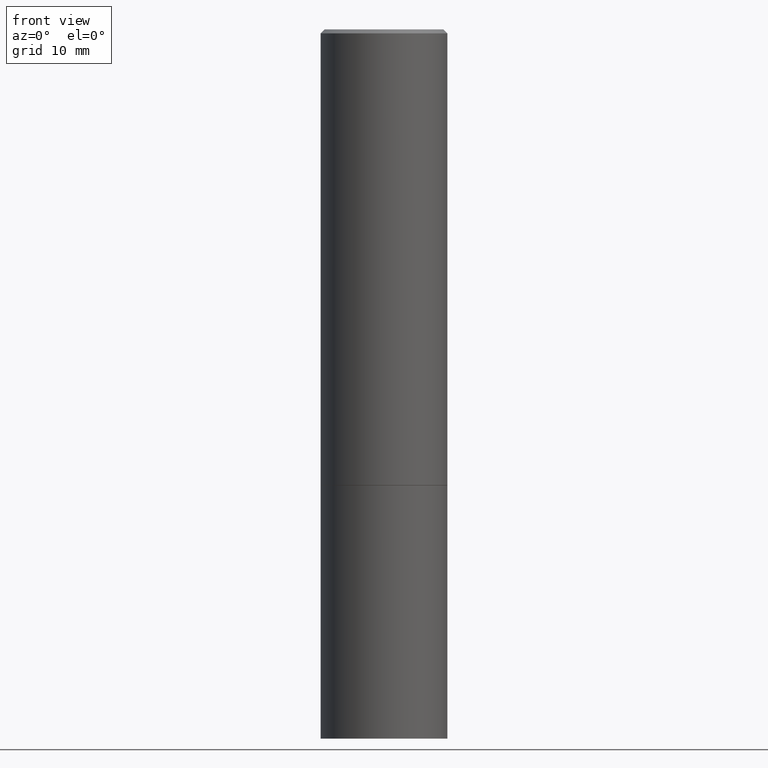
[diagram: clean part render]
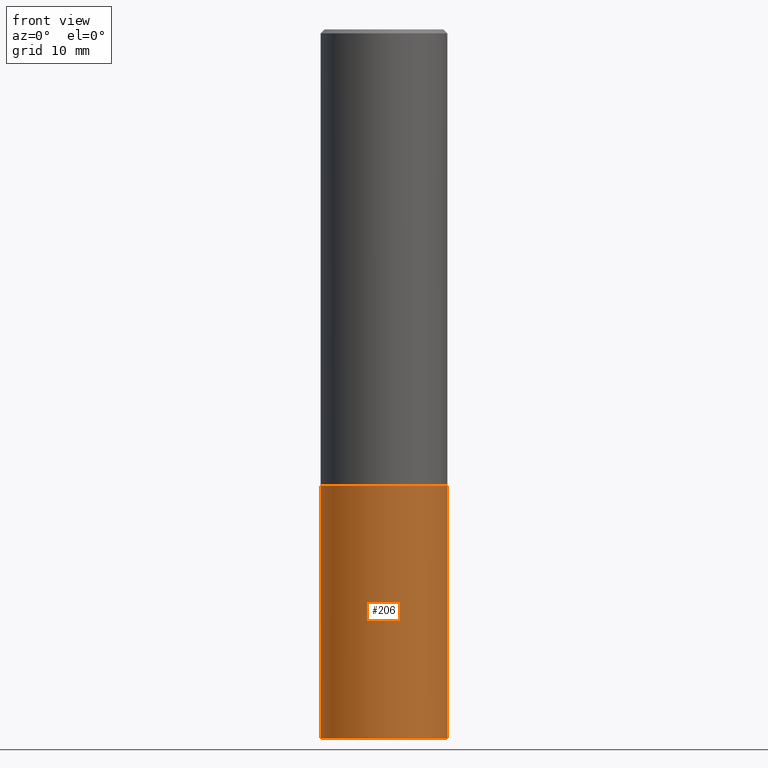
[diagram: same view with one face highlighted and labeled with its STEP entity id]
A machine part, front view. The second image highlights one B-rep face of the part: STEP entity #206.
In plain terms, the highlighted cylindrical surface (partial cylindrical patch) has radius 7.9375 mm, axis along (-0, 0, 1).
Its self-contained STEP definition (entity closure, byte-faithful):
#19 = VERTEX_POINT ( 'NONE', #365 ) ;
#22 = ORIENTED_EDGE ( 'NONE', *, *, #226, .F. ) ;
#26 = AXIS2_PLACEMENT_3D ( 'NONE', #296, #313, #108 ) ;
#50 = VECTOR ( 'NONE', #302, 39.37007874015748143 ) ;
#67 = DIRECTION ( 'NONE',  ( -2.445468806185136877E-29, 3.491481338843145188E-15, 1.000000000000000000 ) ) ;
#70 = LINE ( 'NONE', #256, #97 ) ;
#75 = CARTESIAN_POINT ( 'NONE',  ( 0.3125000000000000000, -2.182175836776958347E-15, 1.523805242436230075E-29 ) ) ;
#84 = DIRECTION ( 'NONE',  ( 1.000000000000000000, -6.982962677686269077E-15, 0.000000000000000000 ) ) ;
#97 = VECTOR ( 'NONE', #67, 39.37007874015748143 ) ;
#108 = DIRECTION ( 'NONE',  ( 1.000000000000000000, -6.982962677686266711E-15, 4.876176775795936353E-29 ) ) ;
#115 = EDGE_LOOP ( 'NONE', ( #22, #385, #240, #174 ) ) ;
#147 = VERTEX_POINT ( 'NONE', #246 ) ;
#152 = AXIS2_PLACEMENT_3D ( 'NONE', #175, #347, #84 ) ;
#157 = AXIS2_PLACEMENT_3D ( 'NONE', #345, #383, #168 ) ;
#168 = DIRECTION ( 'NONE',  ( 1.000000000000000000, -6.982962677686265133E-15, 0.000000000000000000 ) ) ;
#174 = ORIENTED_EDGE ( 'NONE', *, *, #292, .F. ) ;
#175 = CARTESIAN_POINT ( 'NONE',  ( 8.559140821647976968E-29, -1.222018468595100934E-14, -3.500000000000000000 ) ) ;
#206 = ADVANCED_FACE ( 'NONE', ( #376 ), #286, .T. ) ;
#226 = EDGE_CURVE ( 'NONE', #147, #19, #70, .T. ) ;
#229 = CIRCLE ( 'NONE', #157, 0.3125000000000000000 ) ;
#234 = VERTEX_POINT ( 'NONE', #264 ) ;
#240 = ORIENTED_EDGE ( 'NONE', *, *, #389, .T. ) ;
#246 = CARTESIAN_POINT ( 'NONE',  ( -0.3124999999999997224, -1.003800884917405415E-14, -3.500000000000000000 ) ) ;
#256 = CARTESIAN_POINT ( 'NONE',  ( -0.3125000000000000000, 2.220446049250313081E-15, -1.537167215704658232E-29 ) ) ;
#264 = CARTESIAN_POINT ( 'NONE',  ( 0.3124999999999997224, -1.436409031025461138E-14, -3.500000000000000000 ) ) ;
#286 = CYLINDRICAL_SURFACE ( 'NONE', #26, 0.3125000000000000000 ) ;
#292 = EDGE_CURVE ( 'NONE', #19, #308, #229, .T. ) ;
#296 = CARTESIAN_POINT ( 'NONE',  ( 0.000000000000000000, 0.000000000000000000, 0.000000000000000000 ) ) ;
#302 = DIRECTION ( 'NONE',  ( -2.445468806185136877E-29, 3.491481338843145188E-15, 1.000000000000000000 ) ) ;
#308 = VERTEX_POINT ( 'NONE', #342 ) ;
#313 = DIRECTION ( 'NONE',  ( -2.445468806185136597E-29, 3.491481338843145583E-15, 1.000000000000000000 ) ) ;
#326 = LINE ( 'NONE', #75, #50 ) ;
#342 = CARTESIAN_POINT ( 'NONE',  ( 0.3125000000000000000, -1.003800884917403364E-14, -2.249999999999999556 ) ) ;
#345 = CARTESIAN_POINT ( 'NONE',  ( 5.502304813916556222E-29, -7.855833012397075293E-15, -2.249999999999999556 ) ) ;
#347 = DIRECTION ( 'NONE',  ( -2.445468806185136597E-29, 3.491481338843145583E-15, 1.000000000000000000 ) ) ;
#358 = CIRCLE ( 'NONE', #152, 0.3125000000000000000 ) ;
#365 = CARTESIAN_POINT ( 'NONE',  ( -0.3125000000000000000, -7.817562799923728448E-15, -2.249999999999999556 ) ) ;
#376 = FACE_OUTER_BOUND ( 'NONE', #115, .T. ) ;
#383 = DIRECTION ( 'NONE',  ( -2.445468806185136597E-29, 3.491481338843145583E-15, 1.000000000000000000 ) ) ;
#385 = ORIENTED_EDGE ( 'NONE', *, *, #387, .T. ) ;
#387 = EDGE_CURVE ( 'NONE', #147, #234, #358, .T. ) ;
#389 = EDGE_CURVE ( 'NONE', #234, #308, #326, .T. ) ;